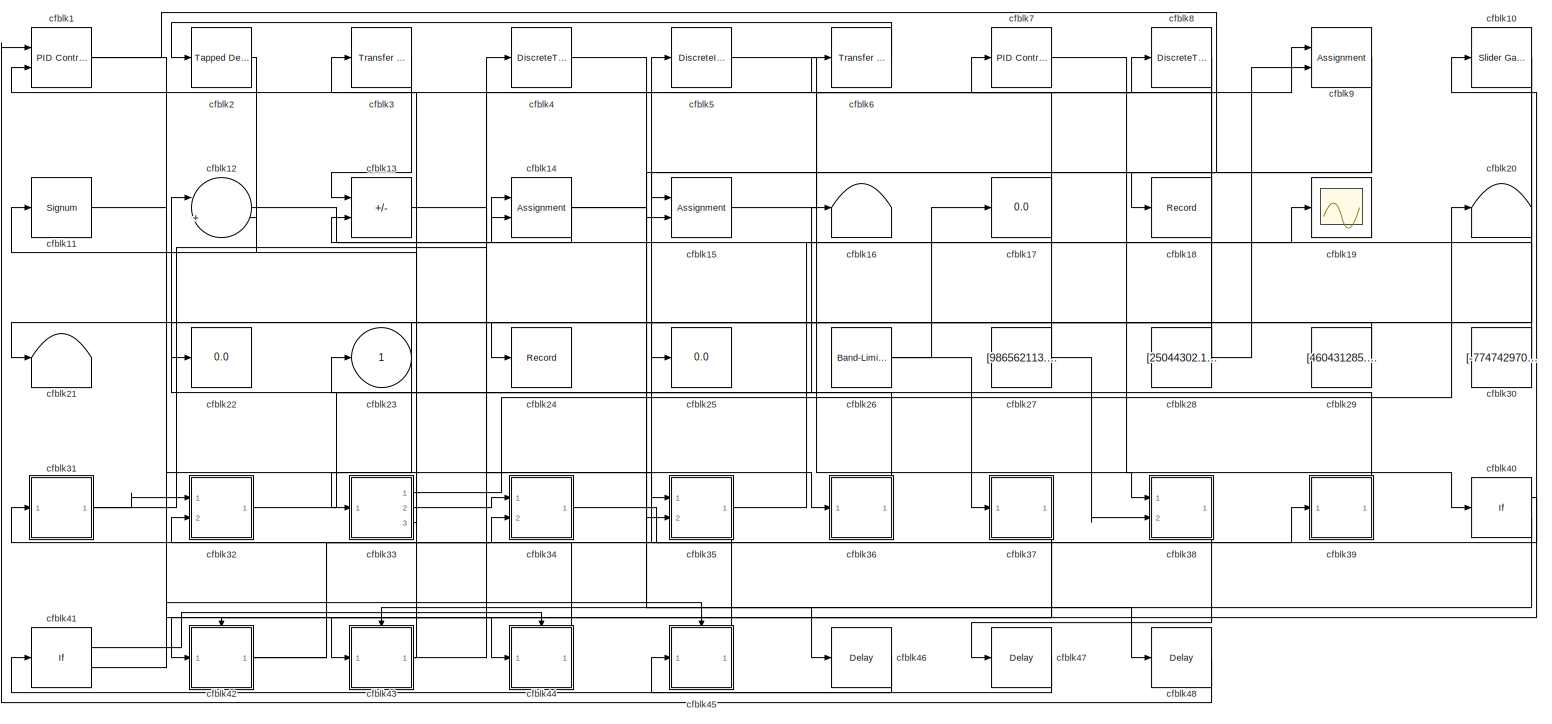
[diagram: root canvas - part 1/1, most of the canvas]
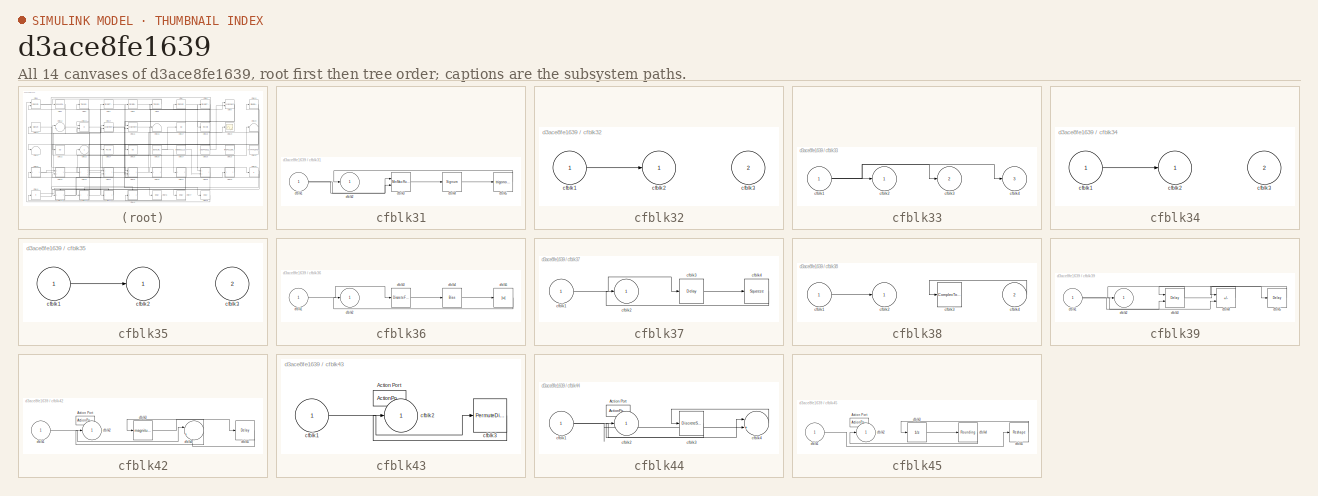
[diagram: thumbnail index - all 14 canvases of the model, root first then tree order]
MODEL slx_d3ace8fe1639
KIND model
CONFIG AbsTol = auto
CONFIG EnableMultiTasking = off
CONFIG FixedStep = auto
CONFIG MaxStep = auto
CONFIG MinStep = auto
CONFIG RelTol = 1e-3
CONFIG SampleTimeConstraint = Unconstrained
CONFIG SolverName = VariableStepAuto
CONFIG StartTime = 0.0
CONFIG StopTime = 10.0
BLOCK [Reference] cfblk1  REF=slpidlib/PID Controller (2DOF)
  Ports = [2, 1]
  SourceBlock = slpidlib/PID Controller (2DOF)
  SourceProductBaseCode = SL
  SourceType = PID 2dof
BLOCK [Reference] cfblk10  REF=simulink/Math
Operations/Slider
Gain
  Ports = [1, 1]
  SourceBlock = simulink/Math\nOperations/Slider\nGain
  SourceProductBaseCode = SL
  SourceType = Slider Gain
BLOCK [Signum] cfblk11
BLOCK [Sum] cfblk12
  Inputs = |++
  Ports = [2, 1]
BLOCK [Sum] cfblk13
  IconShape = rectangular
  Inputs = +-
  Ports = [2, 1]
BLOCK [Assignment] cfblk14
  DiagnosticForDimensions = Warning
  IndexOptions = Index vector (dialog)
  Indices = 1
  OutputSizes = 1
  Ports = [2, 1]
BLOCK [Assignment] cfblk15
  DiagnosticForDimensions = Warning
  IndexOptions = Index vector (dialog)
  Indices = 1
  OutputSizes = 1
  Ports = [2, 1]
BLOCK [Terminator] cfblk16
BLOCK [Display] cfblk17
  Decimation = 1
  Ports = [1]
BLOCK [Record] cfblk18
  FileSettingsInternal = {"entries":[{"content":{"excelSettings":{"content":{},"type":"Streamout.ExcelSettings"}},"type":"Streamout.FileSettingStorage","uuid":"824b5e42-33d0-4b9b-b712-011bf9394831"}],"packageUris":["http://schema.mathworks.com/mf0/streamout_blocks/R2020a"],"version":"1.0"}
  Ports = [1]
  SignalsInternal = {"entries":[{"content":{"signals":[{"content":{"blockPath":["sampleModel111/cfblk18"],"channel":[],"dimensions":[1],"domain":"sampleModel111/cfblk18","lineColor":"#b746ff","plots":[1],"port":1,"sid":[""],"signalID":3863,"signalName":"cfblk1"},"type":"RecordBlkView.Signal","uuid":"80c6b861-b3e7-4893-ab61-61a89fa61ac4"}]},"type":"RecordBlkView.InputSignals","uuid":"8f222f95-a475-4b82-9c52-9b3077a25e...<+96ch>
  VisualizationBindings = {"sparklinesplugin":{"info":[{"bindingParametersList":[],"subplotID":1}]}}
BLOCK [Scope] cfblk19
  Floating = off
  NumInputPorts = 1
  Ports = [1]
BLOCK [Reference] cfblk2  REF=simulink/Discrete/Tapped Delay
  Ports = [1, 1]
  SourceBlock = simulink/Discrete/Tapped Delay
  SourceProductBaseCode = SL
  SourceType = Tapped Delay Line
BLOCK [Terminator] cfblk20
BLOCK [Terminator] cfblk21
BLOCK [Display] cfblk22
  Decimation = 1
  Ports = [1]
BLOCK [Outport] cfblk23
BLOCK [Record] cfblk24
  FileSettingsInternal = {"entries":[{"content":{"excelSettings":{"content":{},"type":"Streamout.ExcelSettings"}},"type":"Streamout.FileSettingStorage","uuid":"3bf7e72d-91e4-4163-93bf-e6735ae58de0"}],"packageUris":["http://schema.mathworks.com/mf0/streamout_blocks/R2020a"],"version":"1.0"}
  Ports = [1]
  SignalsInternal = {"entries":[{"content":{"signals":[{"content":{"blockPath":["sampleModel111/cfblk24"],"channel":[],"dimensions":[1],"domain":"sampleModel111/cfblk24","lineColor":"#64d413","plots":[1],"port":1,"sid":[""],"signalID":3867,"signalName":"cfblk29"},"type":"RecordBlkView.Signal","uuid":"250bfa30-6b65-4bdd-92cc-cb15fedcc02b"}]},"type":"RecordBlkView.InputSignals","uuid":"542c8869-db64-44dd-8862-02a5fcb79...<+97ch>
  VisualizationBindings = {"sparklinesplugin":{"info":[{"bindingParametersList":[],"subplotID":1}]}}
BLOCK [Display] cfblk25
  Decimation = 1
  Ports = [1]
BLOCK [Reference] cfblk26  REF=simulink/Sources/Band-Limited
White Noise
  Ports = [0, 1]
  SourceBlock = simulink/Sources/Band-Limited\nWhite Noise
  SourceProductBaseCode = SL
  SourceType = Band-Limited White Noise.
BLOCK [Constant] cfblk27
  SampleTime = 1
  Value = [986562113.533394]
BLOCK [Constant] cfblk28
  SampleTime = 1
  Value = [25044302.117154]
BLOCK [Constant] cfblk29
  SampleTime = 1
  Value = [460431285.236793]
BLOCK [Reference] cfblk3  REF=simulink/Discrete/Transfer Fcn
Lead or Lag
  Ports = [1, 1]
  SourceBlock = simulink/Discrete/Transfer Fcn\nLead or Lag
  SourceProductBaseCode = SL
  SourceType = Lead or Lag Compensator
BLOCK [Constant] cfblk30
  SampleTime = 1
  Value = [-774742970.649695]
BLOCK [SubSystem] cfblk31
  Ports = [1, 1]
  RequestExecContextInheritance = off
BLOCK [Inport] cfblk31/cfblk1
BLOCK [Outport] cfblk31/cfblk2
BLOCK [Reference] cfblk31/cfblk3  REF=simulink/Math
Operations/MinMax
Running
Resettable
  Ports = [2, 1]
  SourceBlock = simulink/Math\nOperations/MinMax\nRunning\nResettable
  SourceProductBaseCode = SL
  SourceType = MinMax Running Resettable
BLOCK [Signum] cfblk31/cfblk4
BLOCK [Trigonometry] cfblk31/cfblk5
  Ports = [1, 1]
BLOCK [SubSystem] cfblk32
  Ports = [2, 1]
  RequestExecContextInheritance = off
BLOCK [Inport] cfblk32/cfblk1
BLOCK [Outport] cfblk32/cfblk2
BLOCK [Inport] cfblk32/cfblk3
  Port = 2
BLOCK [SubSystem] cfblk33
  Ports = [1, 3]
  RequestExecContextInheritance = off
BLOCK [Inport] cfblk33/cfblk1
BLOCK [Outport] cfblk33/cfblk2
BLOCK [Outport] cfblk33/cfblk3
  Port = 2
BLOCK [Outport] cfblk33/cfblk4
  Port = 3
BLOCK [SubSystem] cfblk34
  Ports = [2, 1]
  RequestExecContextInheritance = off
BLOCK [Inport] cfblk34/cfblk1
BLOCK [Outport] cfblk34/cfblk2
BLOCK [Inport] cfblk34/cfblk3
  Port = 2
BLOCK [SubSystem] cfblk35
  Ports = [2, 1]
  RequestExecContextInheritance = off
BLOCK [Inport] cfblk35/cfblk1
BLOCK [Outport] cfblk35/cfblk2
BLOCK [Inport] cfblk35/cfblk3
  Port = 2
BLOCK [SubSystem] cfblk36
  Ports = [1, 1]
  RequestExecContextInheritance = off
BLOCK [Inport] cfblk36/cfblk1
BLOCK [Outport] cfblk36/cfblk2
BLOCK [DiscreteFilter] cfblk36/cfblk3
  InputPortMap = u0
  Ports = [1, 1]
  SampleTime = 1
BLOCK [Bias] cfblk36/cfblk4
  Bias = [-730350130.812666]
  SaturateOnIntegerOverflow = off
BLOCK [Abs] cfblk36/cfblk5
  SaturateOnIntegerOverflow = off
BLOCK [SubSystem] cfblk37
  Ports = [1, 1]
  RequestExecContextInheritance = off
BLOCK [Inport] cfblk37/cfblk1
BLOCK [Outport] cfblk37/cfblk2
BLOCK [Delay] cfblk37/cfblk3
  InputPortMap = u0
  Ports = [1, 1]
  SampleTime = 1
BLOCK [Squeeze] cfblk37/cfblk4
BLOCK [SubSystem] cfblk38
  Ports = [2, 1]
  RequestExecContextInheritance = off
BLOCK [Inport] cfblk38/cfblk1
BLOCK [Outport] cfblk38/cfblk2
BLOCK [ComplexToMagnitudeAngle] cfblk38/cfblk3
  Ports = [1, 2]
BLOCK [Inport] cfblk38/cfblk4
  Port = 2
BLOCK [SubSystem] cfblk39
  Ports = [1, 1]
  RequestExecContextInheritance = off
BLOCK [Inport] cfblk39/cfblk1
BLOCK [Outport] cfblk39/cfblk2
BLOCK [Delay] cfblk39/cfblk3
  DelayLengthSource = Input port
  InputPortMap = u0,p1
  Ports = [2, 1]
  SampleTime = 1
BLOCK [Sum] cfblk39/cfblk4
  IconShape = rectangular
  Inputs = --
  Ports = [2, 1]
BLOCK [Delay] cfblk39/cfblk5
  InputPortMap = u0
  Ports = [1, 1]
  SampleTime = 1
BLOCK [DiscreteTransferFcn] cfblk4
  InputPortMap = u0
  Ports = [1, 1]
  SampleTime = 1
BLOCK [If] cfblk40
  IfExpression = u1 >= 0
  Ports = [1, 2]
  SampleTime = 1
BLOCK [If] cfblk41
  IfExpression = u1 >= 0
  Ports = [1, 2]
  SampleTime = 1
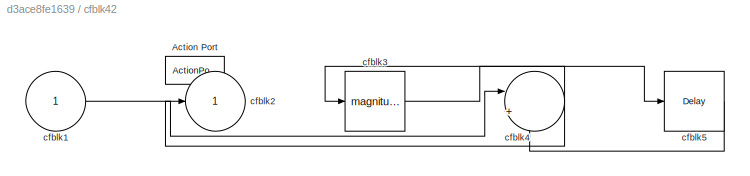
BLOCK [SubSystem] cfblk42
  Ports = [1, 1, 0, 0, 0, 0, 0, 1]
  RequestExecContextInheritance = off
  TreatAsAtomicUnit = on
BLOCK [ActionPort] cfblk42/Action Port
  ActionPortLabel = if(u1 >= 0)
BLOCK [Inport] cfblk42/cfblk1
BLOCK [Outport] cfblk42/cfblk2
BLOCK [Math] cfblk42/cfblk3
  Operator = magnitude^2
  Ports = [1, 1]
BLOCK [Sum] cfblk42/cfblk4
  Inputs = |++
  Ports = [2, 1]
BLOCK [Delay] cfblk42/cfblk5
  InputPortMap = u0
  Ports = [1, 1]
BLOCK [SubSystem] cfblk43
  Ports = [1, 1, 0, 0, 0, 0, 0, 1]
  RequestExecContextInheritance = off
  TreatAsAtomicUnit = on
BLOCK [ActionPort] cfblk43/Action Port
  ActionPortLabel = else
BLOCK [Inport] cfblk43/cfblk1
BLOCK [Outport] cfblk43/cfblk2
BLOCK [PermuteDimensions] cfblk43/cfblk3
BLOCK [SubSystem] cfblk44
  Ports = [1, 1, 0, 0, 0, 0, 0, 1]
  RequestExecContextInheritance = off
  TreatAsAtomicUnit = on
BLOCK [ActionPort] cfblk44/Action Port
  ActionPortLabel = if(u1 >= 0)
BLOCK [Inport] cfblk44/cfblk1
BLOCK [Outport] cfblk44/cfblk2
BLOCK [DiscreteStateSpace] cfblk44/cfblk3
  SampleTime = -1
BLOCK [Sum] cfblk44/cfblk4
  Inputs = |++
  Ports = [2, 1]
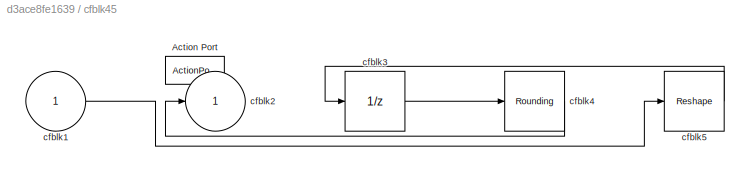
BLOCK [SubSystem] cfblk45
  Ports = [1, 1, 0, 0, 0, 0, 0, 1]
  RequestExecContextInheritance = off
  TreatAsAtomicUnit = on
BLOCK [ActionPort] cfblk45/Action Port
  ActionPortLabel = else
BLOCK [Inport] cfblk45/cfblk1
BLOCK [Outport] cfblk45/cfblk2
BLOCK [UnitDelay] cfblk45/cfblk3
  HasFrameUpgradeWarning = on
  SampleTime = -1
BLOCK [Rounding] cfblk45/cfblk4
BLOCK [Reshape] cfblk45/cfblk5
  Ports = [1, 1]
BLOCK [Delay] cfblk46
  InputPortMap = u0
  Ports = [1, 1]
  SampleTime = 1
BLOCK [Delay] cfblk47
  InputPortMap = u0
  Ports = [1, 1]
  SampleTime = 1
BLOCK [Delay] cfblk48
  InputPortMap = u0
  Ports = [1, 1]
  SampleTime = 1
BLOCK [DiscreteIntegrator] cfblk5
  ICPrevOutput = DiscIntNeverNeededParam
  ICPrevScaledInput = DiscIntNeverNeededParam
  InitialConditionSetting = Auto
  Ports = [1, 1]
BLOCK [Reference] cfblk6  REF=simulink/Discrete/Transfer Fcn
Lead or Lag
  Ports = [1, 1]
  SourceBlock = simulink/Discrete/Transfer Fcn\nLead or Lag
  SourceProductBaseCode = SL
  SourceType = Lead or Lag Compensator
BLOCK [Reference] cfblk7  REF=slpidlib/PID Controller
  Ports = [1, 1]
  SourceBlock = slpidlib/PID Controller
  SourceProductBaseCode = SL
  SourceType = PID 1dof
BLOCK [DiscreteTransferFcn] cfblk8
  InputPortMap = u0
  Ports = [1, 1]
  SampleTime = 1
BLOCK [Assignment] cfblk9
  DiagnosticForDimensions = Warning
  IndexOptions = Index vector (dialog)
  Indices = 1
  OutputSizes = 1
  Ports = [2, 1]
NET cfblk10:1 -> cfblk21:1, cfblk25:1
LINE cfblk11:1 -> cfblk35:2
LINE cfblk12:1 -> cfblk14:2
LINE cfblk13:1 -> cfblk35:1
NET cfblk14:1 -> cfblk13:2, cfblk46:1, cfblk48:1
LINE cfblk15:1 -> cfblk8:1
NET cfblk1:1 -> cfblk18:1, cfblk44:1
NET cfblk26:1 -> cfblk17:1, cfblk37:1
NET cfblk27:1 -> cfblk38:2, cfblk6:1
NET cfblk28:1 -> cfblk22:1, cfblk7:1, cfblk9:2
LINE cfblk29:1 -> cfblk24:1
LINE cfblk2:1 -> cfblk12:2
LINE cfblk30:1 -> cfblk14:1
NET cfblk31/cfblk1:1 -> cfblk31/cfblk3:1, cfblk31/cfblk3:2
LINE cfblk31/cfblk3:1 -> cfblk31/cfblk4:1
LINE cfblk31/cfblk4:1 -> cfblk31/cfblk5:1
LINE cfblk31/cfblk5:1 -> cfblk31/cfblk2:1
NET cfblk31:1 -> cfblk32:1, cfblk4:1
LINE cfblk32/cfblk1:1 -> cfblk32/cfblk2:1
LINE cfblk32:1 -> cfblk16:1
NET cfblk33/cfblk1:1 -> cfblk33/cfblk2:1, cfblk33/cfblk3:1, cfblk33/cfblk4:1
LINE cfblk33:1 -> cfblk20:1
LINE cfblk33:2 -> cfblk34:1
LINE cfblk33:3 -> cfblk11:1
LINE cfblk34/cfblk1:1 -> cfblk34/cfblk2:1
LINE cfblk34:1 -> cfblk10:1
LINE cfblk35/cfblk1:1 -> cfblk35/cfblk2:1
NET cfblk35:1 -> cfblk19:1, cfblk32:2
LINE cfblk36/cfblk1:1 -> cfblk36/cfblk3:1
LINE cfblk36/cfblk3:1 -> cfblk36/cfblk4:1
LINE cfblk36/cfblk4:1 -> cfblk36/cfblk5:1
LINE cfblk36/cfblk5:1 -> cfblk36/cfblk2:1
LINE cfblk36:1 -> cfblk12:1
LINE cfblk37/cfblk1:1 -> cfblk37/cfblk3:1
LINE cfblk37/cfblk3:1 -> cfblk37/cfblk4:1
LINE cfblk37/cfblk4:1 -> cfblk37/cfblk2:1
NET cfblk37:1 -> cfblk42:1, cfblk43:1
LINE cfblk38/cfblk1:1 -> cfblk38/cfblk2:1
LINE cfblk38/cfblk4:1 -> cfblk38/cfblk3:1
LINE cfblk38:1 -> cfblk47:1
NET cfblk39/cfblk1:1 -> cfblk39/cfblk3:2, cfblk39/cfblk4:2
NET cfblk39/cfblk3:1 -> cfblk39/cfblk2:1, cfblk39/cfblk5:1
LINE cfblk39/cfblk4:1 -> cfblk39/cfblk3:1
LINE cfblk39/cfblk5:1 -> cfblk39/cfblk4:1
LINE cfblk39:1 -> cfblk23:1
LINE cfblk3:1 -> cfblk13:1
LINE cfblk40:1 -> cfblk42:ifaction
LINE cfblk40:2 -> cfblk43:ifaction
LINE cfblk41:1 -> cfblk44:ifaction
LINE cfblk41:2 -> cfblk45:ifaction
LINE cfblk42/cfblk1:1 -> cfblk42/cfblk4:1
LINE cfblk42/cfblk3:1 -> cfblk42/cfblk5:1
NET cfblk42/cfblk4:1 -> cfblk42/cfblk2:1, cfblk42/cfblk3:1
LINE cfblk42/cfblk5:1 -> cfblk42/cfblk4:2
NET cfblk42:1 -> cfblk34:2, cfblk39:1
LINE cfblk43/cfblk1:1 -> cfblk43/cfblk3:1
LINE cfblk43/cfblk3:1 -> cfblk43/cfblk2:1
NET cfblk43:1 -> cfblk3:1, cfblk9:1
NET cfblk44/cfblk1:1 -> cfblk44/cfblk4:1, cfblk44/cfblk4:2
LINE cfblk44/cfblk3:1 -> cfblk44/cfblk2:1
LINE cfblk44/cfblk4:1 -> cfblk44/cfblk3:1
LINE cfblk44:1 -> cfblk31:1
LINE cfblk45/cfblk1:1 -> cfblk45/cfblk5:1
LINE cfblk45/cfblk3:1 -> cfblk45/cfblk4:1
LINE cfblk45/cfblk4:1 -> cfblk45/cfblk2:1
LINE cfblk45/cfblk5:1 -> cfblk45/cfblk3:1
LINE cfblk45:1 -> cfblk5:1
LINE cfblk46:1 -> cfblk41:1
LINE cfblk47:1 -> cfblk45:1
LINE cfblk48:1 -> cfblk1:1
LINE cfblk4:1 -> cfblk36:1
LINE cfblk5:1 -> cfblk38:1
LINE cfblk6:1 -> cfblk2:1
LINE cfblk7:1 -> cfblk40:1
NET cfblk8:1 -> cfblk1:2, cfblk33:1
NET cfblk9:1 -> cfblk15:1, cfblk15:2
note: NET lines group one-source signal fan-out (src -> all destinations, sorted); 1:1 wires keep LINE
